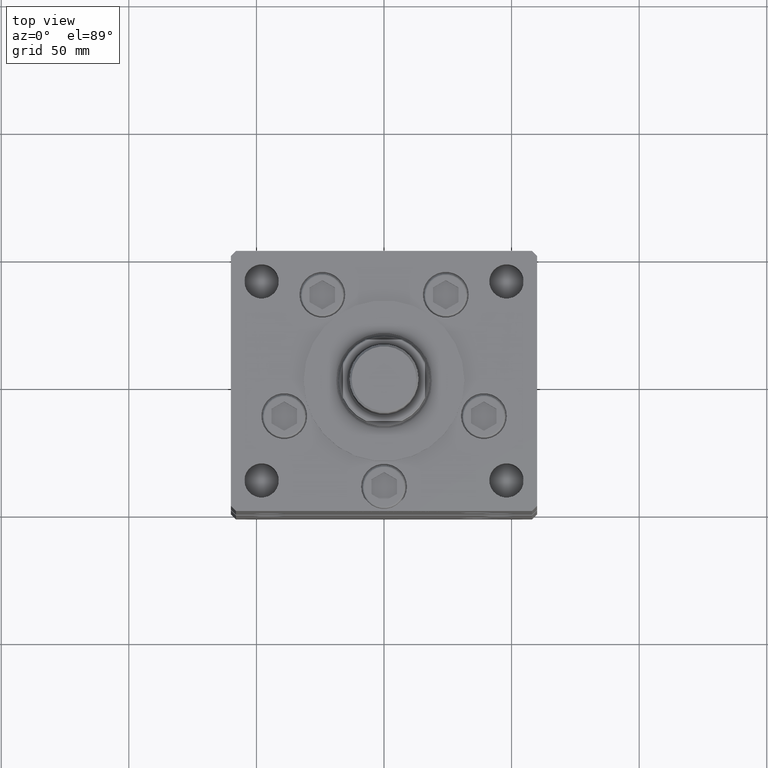
[diagram: clean part render]
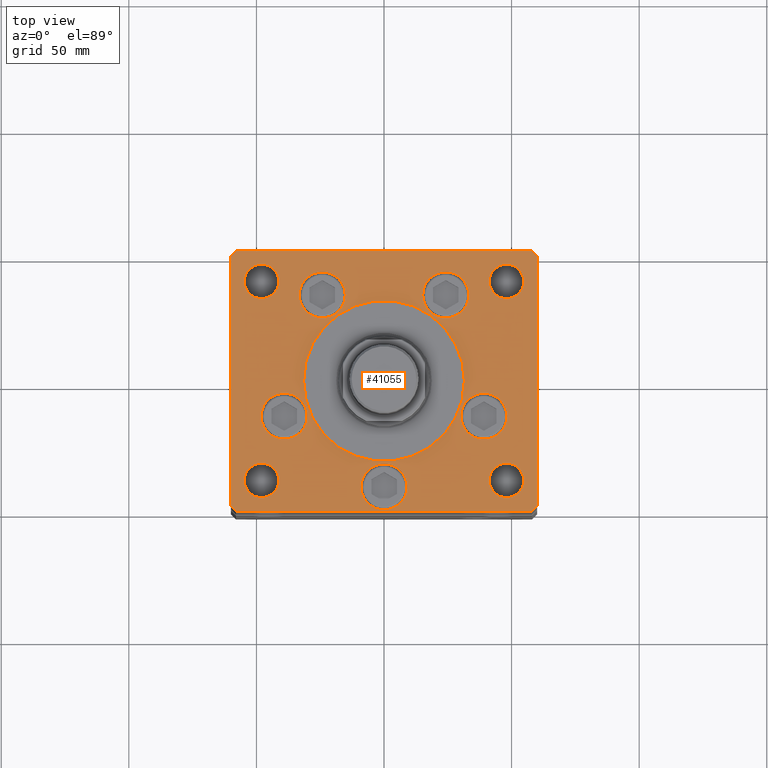
[diagram: same view with one face highlighted and labeled with its STEP entity id]
A machine part, top view. The second image highlights one B-rep face of the part: STEP entity #41055.
In plain terms, the highlighted planar face has unit normal (0, 0, 1).
Its self-contained STEP definition (entity closure, byte-faithful):
#312 = EDGE_CURVE ( 'NONE', #7458, #529, #42595, .T. ) ;
#334 = CARTESIAN_POINT ( 'NONE',  ( -54.75000000000000000, -39.00000000000001421, 0.000000000000000000 ) ) ;
#434 = ORIENTED_EDGE ( 'NONE', *, *, #17738, .T. ) ;
#529 = VERTEX_POINT ( 'NONE', #46582 ) ;
#532 = ORIENTED_EDGE ( 'NONE', *, *, #29534, .T. ) ;
#643 = AXIS2_PLACEMENT_3D ( 'NONE', #2245, #17955, #50676 ) ;
#657 = FACE_BOUND ( 'NONE', #44994, .T. ) ;
#1491 = CARTESIAN_POINT ( 'NONE',  ( -58.00000000000000711, -51.00000000000002842, 0.000000000000000000 ) ) ;
#1558 = CIRCLE ( 'NONE', #39548, 31.50000000000000000 ) ;
#1864 = EDGE_LOOP ( 'NONE', ( #532, #40342 ) ) ;
#2245 = CARTESIAN_POINT ( 'NONE',  ( 0.000000000000000000, -6.938893903907228378E-15, 0.000000000000000000 ) ) ;
#2404 = AXIS2_PLACEMENT_3D ( 'NONE', #36083, #23640, #7943 ) ;
#2600 = AXIS2_PLACEMENT_3D ( 'NONE', #12640, #4527, #33467 ) ;
#2667 = CARTESIAN_POINT ( 'NONE',  ( 33.19288941894913592, 33.71874999999998579, 0.000000000000000000 ) ) ;
#2835 = EDGE_CURVE ( 'NONE', #3861, #12935, #34354, .T. ) ;
#3081 = EDGE_LOOP ( 'NONE', ( #26817, #19081 ) ) ;
#3128 = EDGE_LOOP ( 'NONE', ( #32664, #45875, #11576, #35573, #434, #25481, #46478, #14109 ) ) ;
#3267 = CARTESIAN_POINT ( 'NONE',  ( -57.99999999999998579, 50.99999999999997868, 0.000000000000000000 ) ) ;
#3288 = CARTESIAN_POINT ( 'NONE',  ( -41.25000000000000000, -39.00000000000001421, 0.000000000000000000 ) ) ;
#3861 = VERTEX_POINT ( 'NONE', #20211 ) ;
#4034 = EDGE_CURVE ( 'NONE', #27569, #45777, #17969, .T. ) ;
#4355 = EDGE_CURVE ( 'NONE', #529, #41035, #52205, .T. ) ;
#4442 = CARTESIAN_POINT ( 'NONE',  ( 24.19288941894913592, 33.71874999999998579, 0.000000000000000000 ) ) ;
#4451 = VECTOR ( 'NONE', #27131, 1000.000000000000000 ) ;
#4527 = DIRECTION ( 'NONE',  ( 0.000000000000000000, 0.000000000000000000, 1.000000000000000000 ) ) ;
#4741 = VERTEX_POINT ( 'NONE', #26412 ) ;
#4932 = CIRCLE ( 'NONE', #46370, 6.749999999999999112 ) ;
#5095 = CARTESIAN_POINT ( 'NONE',  ( -48.00000000000000000, 39.00000000000000711, 0.000000000000000000 ) ) ;
#5264 = ORIENTED_EDGE ( 'NONE', *, *, #22795, .F. ) ;
#6170 = VERTEX_POINT ( 'NONE', #35754 ) ;
#6283 = DIRECTION ( 'NONE',  ( 0.000000000000000000, 0.000000000000000000, 1.000000000000000000 ) ) ;
#6420 = DIRECTION ( 'NONE',  ( 1.000000000000000000, 0.000000000000000000, 0.000000000000000000 ) ) ;
#6649 = CARTESIAN_POINT ( 'NONE',  ( -41.25000000000000000, 39.00000000000000711, 0.000000000000000000 ) ) ;
#6729 = VECTOR ( 'NONE', #27454, 1000.000000000000114 ) ;
#7458 = VERTEX_POINT ( 'NONE', #53041 ) ;
#7532 = VECTOR ( 'NONE', #9352, 1000.000000000000000 ) ;
#7727 = EDGE_CURVE ( 'NONE', #38421, #26371, #1558, .T. ) ;
#7804 = CARTESIAN_POINT ( 'NONE',  ( 48.00000000000000000, 39.00000000000000000, 0.000000000000000000 ) ) ;
#7823 = CARTESIAN_POINT ( 'NONE',  ( 31.50000000000000000, -3.081256486593065689E-15, 0.000000000000000000 ) ) ;
#7853 = DIRECTION ( 'NONE',  ( 1.000000000000000000, 0.000000000000000000, 0.000000000000000000 ) ) ;
#7943 = DIRECTION ( 'NONE',  ( 1.000000000000000000, 0.000000000000000000, 0.000000000000000000 ) ) ;
#8032 = DIRECTION ( 'NONE',  ( 0.000000000000000000, -1.000000000000000000, 0.000000000000000000 ) ) ;
#8036 = EDGE_CURVE ( 'NONE', #6170, #16118, #22839, .T. ) ;
#8624 = CARTESIAN_POINT ( 'NONE',  ( 0.000000000000000000, -41.50000000000000000, 0.000000000000000000 ) ) ;
#8684 = EDGE_CURVE ( 'NONE', #41035, #6170, #41281, .T. ) ;
#8710 = CIRCLE ( 'NONE', #27738, 6.749999999999999112 ) ;
#8781 = FACE_BOUND ( 'NONE', #1864, .T. ) ;
#8830 = CARTESIAN_POINT ( 'NONE',  ( -60.00000000000000000, 49.00000000000000000, 0.000000000000000000 ) ) ;
#9096 = DIRECTION ( 'NONE',  ( 0.000000000000000000, 0.000000000000000000, 1.000000000000000000 ) ) ;
#9352 = DIRECTION ( 'NONE',  ( 1.000000000000000000, 9.570888143320313916E-16, 0.000000000000000000 ) ) ;
#9605 = DIRECTION ( 'NONE',  ( -1.000000000000000000, -2.392722035830078972E-16, 0.000000000000000000 ) ) ;
#9607 = EDGE_CURVE ( 'NONE', #45053, #28785, #27524, .T. ) ;
#9761 = ORIENTED_EDGE ( 'NONE', *, *, #36242, .F. ) ;
#9957 = DIRECTION ( 'NONE',  ( 1.000000000000000000, 0.000000000000000000, 0.000000000000000000 ) ) ;
#10524 = ORIENTED_EDGE ( 'NONE', *, *, #41227, .F. ) ;
#11386 = VERTEX_POINT ( 'NONE', #34850 ) ;
#11576 = ORIENTED_EDGE ( 'NONE', *, *, #41305, .T. ) ;
#11580 = DIRECTION ( 'NONE',  ( -0.000000000000000000, 0.000000000000000000, 1.000000000000000000 ) ) ;
#11738 = CARTESIAN_POINT ( 'NONE',  ( -58.00000000000000711, -51.00000000000002842, 0.000000000000000000 ) ) ;
#12078 = CARTESIAN_POINT ( 'NONE',  ( 0.000000000000000000, -41.50000000000000000, 0.000000000000000000 ) ) ;
#12180 = AXIS2_PLACEMENT_3D ( 'NONE', #34823, #43721, #30758 ) ;
#12627 = AXIS2_PLACEMENT_3D ( 'NONE', #7804, #16189, #23765 ) ;
#12640 = CARTESIAN_POINT ( 'NONE',  ( -48.00000000000000000, -39.00000000000001421, 0.000000000000000000 ) ) ;
#12935 = VERTEX_POINT ( 'NONE', #19982 ) ;
#13171 = EDGE_CURVE ( 'NONE', #19509, #19909, #19875, .T. ) ;
#13431 = CARTESIAN_POINT ( 'NONE',  ( 60.00000000000001421, -48.99999999999992895, 0.000000000000000000 ) ) ;
#14004 = DIRECTION ( 'NONE',  ( 1.000000000000000000, 0.000000000000000000, 0.000000000000000000 ) ) ;
#14010 = DIRECTION ( 'NONE',  ( 0.000000000000000000, 0.000000000000000000, 1.000000000000000000 ) ) ;
#14067 = DIRECTION ( 'NONE',  ( 1.000000000000000000, 0.000000000000000000, 0.000000000000000000 ) ) ;
#14109 = ORIENTED_EDGE ( 'NONE', *, *, #8684, .T. ) ;
#14179 = CARTESIAN_POINT ( 'NONE',  ( 58.00000000000001421, -50.99999999999992184, 0.000000000000000000 ) ) ;
#14437 = ORIENTED_EDGE ( 'NONE', *, *, #34541, .F. ) ;
#14463 = CARTESIAN_POINT ( 'NONE',  ( -60.00000000000000000, -49.00000000000004263, 0.000000000000000000 ) ) ;
#14755 = EDGE_CURVE ( 'NONE', #25590, #14868, #25933, .T. ) ;
#14868 = VERTEX_POINT ( 'NONE', #334 ) ;
#14966 = CIRCLE ( 'NONE', #25305, 9.000000000000001776 ) ;
#15157 = EDGE_LOOP ( 'NONE', ( #23497, #37523 ) ) ;
#15446 = CARTESIAN_POINT ( 'NONE',  ( -24.19288941894913592, 33.71874999999998579, 0.000000000000000000 ) ) ;
#15663 = CIRCLE ( 'NONE', #12180, 6.749999999999999112 ) ;
#16050 = DIRECTION ( 'NONE',  ( 0.7071067811865474617, 0.7071067811865474617, 0.000000000000000000 ) ) ;
#16118 = VERTEX_POINT ( 'NONE', #11738 ) ;
#16189 = DIRECTION ( 'NONE',  ( 0.000000000000000000, 0.000000000000000000, 1.000000000000000000 ) ) ;
#16639 = EDGE_CURVE ( 'NONE', #26680, #28226, #15663, .T. ) ;
#17013 = ORIENTED_EDGE ( 'NONE', *, *, #42885, .T. ) ;
#17049 = DIRECTION ( 'NONE',  ( 1.000000000000000000, 0.000000000000000000, 0.000000000000000000 ) ) ;
#17433 = DIRECTION ( 'NONE',  ( 1.000000000000000000, 0.000000000000000000, 0.000000000000000000 ) ) ;
#17732 = LINE ( 'NONE', #1491, #7532 ) ;
#17738 = EDGE_CURVE ( 'NONE', #4741, #7458, #23056, .T. ) ;
#17955 = DIRECTION ( 'NONE',  ( 0.000000000000000000, 0.000000000000000000, 1.000000000000000000 ) ) ;
#17969 = CIRCLE ( 'NONE', #2404, 9.000000000000000000 ) ;
#18017 = VERTEX_POINT ( 'NONE', #27067 ) ;
#18058 = CARTESIAN_POINT ( 'NONE',  ( 0.000000000000000000, -6.938893903907228378E-15, 0.000000000000000000 ) ) ;
#18219 = ORIENTED_EDGE ( 'NONE', *, *, #16639, .T. ) ;
#18387 = CARTESIAN_POINT ( 'NONE',  ( -48.00000000000000000, -39.00000000000001421, 0.000000000000000000 ) ) ;
#18499 = EDGE_LOOP ( 'NONE', ( #45497, #34983 ) ) ;
#19081 = ORIENTED_EDGE ( 'NONE', *, *, #4034, .F. ) ;
#19099 = CARTESIAN_POINT ( 'NONE',  ( 54.75000000000000000, -39.00000000000001421, 0.000000000000000000 ) ) ;
#19122 = DIRECTION ( 'NONE',  ( 0.000000000000000000, 0.000000000000000000, 1.000000000000000000 ) ) ;
#19365 = DIRECTION ( 'NONE',  ( -0.000000000000000000, -0.000000000000000000, -1.000000000000000000 ) ) ;
#19509 = VERTEX_POINT ( 'NONE', #28236 ) ;
#19875 = CIRCLE ( 'NONE', #28503, 9.000000000000001776 ) ;
#19909 = VERTEX_POINT ( 'NONE', #2667 ) ;
#19982 = CARTESIAN_POINT ( 'NONE',  ( -30.12657522565563539, -13.83333333333332860, 0.000000000000000000 ) ) ;
#20056 = CIRCLE ( 'NONE', #50267, 9.000000000000001776 ) ;
#20060 = CARTESIAN_POINT ( 'NONE',  ( 39.12657522565563539, -13.83333333333332860, 0.000000000000000000 ) ) ;
#20211 = CARTESIAN_POINT ( 'NONE',  ( -48.12657522565563539, -13.83333333333332682, 0.000000000000000000 ) ) ;
#20349 = CARTESIAN_POINT ( 'NONE',  ( -33.19288941894913592, 33.71874999999998579, 0.000000000000000000 ) ) ;
#20521 = CARTESIAN_POINT ( 'NONE',  ( 9.000000000000000000, -41.50000000000000000, 0.000000000000000000 ) ) ;
#20674 = DIRECTION ( 'NONE',  ( 0.000000000000000000, 0.000000000000000000, 1.000000000000000000 ) ) ;
#21212 = FACE_BOUND ( 'NONE', #27027, .T. ) ;
#21706 = EDGE_CURVE ( 'NONE', #12935, #3861, #14966, .T. ) ;
#22102 = DIRECTION ( 'NONE',  ( -0.000000000000000000, -0.000000000000000000, -1.000000000000000000 ) ) ;
#22109 = CARTESIAN_POINT ( 'NONE',  ( -9.000000000000000000, -41.50000000000000000, 0.000000000000000000 ) ) ;
#22301 = EDGE_CURVE ( 'NONE', #28785, #45053, #33106, .T. ) ;
#22773 = DIRECTION ( 'NONE',  ( 1.000000000000000000, 0.000000000000000000, 0.000000000000000000 ) ) ;
#22795 = EDGE_CURVE ( 'NONE', #19909, #19509, #20056, .T. ) ;
#22839 = LINE ( 'NONE', #14463, #6729 ) ;
#23056 = LINE ( 'NONE', #43887, #4451 ) ;
#23497 = ORIENTED_EDGE ( 'NONE', *, *, #21706, .F. ) ;
#23550 = EDGE_LOOP ( 'NONE', ( #17013, #18219 ) ) ;
#23640 = DIRECTION ( 'NONE',  ( 0.000000000000000000, 0.000000000000000000, 1.000000000000000000 ) ) ;
#23765 = DIRECTION ( 'NONE',  ( 1.000000000000000000, 0.000000000000000000, 0.000000000000000000 ) ) ;
#24769 = DIRECTION ( 'NONE',  ( 1.000000000000000000, 0.000000000000000000, 0.000000000000000000 ) ) ;
#25124 = VERTEX_POINT ( 'NONE', #14179 ) ;
#25305 = AXIS2_PLACEMENT_3D ( 'NONE', #50989, #9096, #33441 ) ;
#25481 = ORIENTED_EDGE ( 'NONE', *, *, #312, .T. ) ;
#25590 = VERTEX_POINT ( 'NONE', #3288 ) ;
#25933 = CIRCLE ( 'NONE', #2600, 6.749999999999999112 ) ;
#26371 = VERTEX_POINT ( 'NONE', #29873 ) ;
#26406 = EDGE_LOOP ( 'NONE', ( #10524, #41919 ) ) ;
#26412 = CARTESIAN_POINT ( 'NONE',  ( 60.00000000000001421, 49.00000000000002842, 0.000000000000000000 ) ) ;
#26426 = DIRECTION ( 'NONE',  ( 0.000000000000000000, 0.000000000000000000, 1.000000000000000000 ) ) ;
#26671 = AXIS2_PLACEMENT_3D ( 'NONE', #28099, #11580, #17433 ) ;
#26680 = VERTEX_POINT ( 'NONE', #46022 ) ;
#26738 = FACE_BOUND ( 'NONE', #46822, .T. ) ;
#26817 = ORIENTED_EDGE ( 'NONE', *, *, #27824, .F. ) ;
#27027 = EDGE_LOOP ( 'NONE', ( #32081, #48834 ) ) ;
#27067 = CARTESIAN_POINT ( 'NONE',  ( 48.12657522565563539, -13.83333333333332860, 0.000000000000000000 ) ) ;
#27102 = ORIENTED_EDGE ( 'NONE', *, *, #31407, .F. ) ;
#27131 = DIRECTION ( 'NONE',  ( -0.7071067811865536790, 0.7071067811865414665, 0.000000000000000000 ) ) ;
#27418 = CARTESIAN_POINT ( 'NONE',  ( 58.00000000000001421, -50.99999999999992184, 0.000000000000000000 ) ) ;
#27454 = DIRECTION ( 'NONE',  ( 0.7071067811865474617, -0.7071067811865474617, 0.000000000000000000 ) ) ;
#27524 = CIRCLE ( 'NONE', #49081, 9.000000000000000000 ) ;
#27551 = CARTESIAN_POINT ( 'NONE',  ( -60.00000000000000000, 49.00000000000000000, 0.000000000000000000 ) ) ;
#27569 = VERTEX_POINT ( 'NONE', #20349 ) ;
#27738 = AXIS2_PLACEMENT_3D ( 'NONE', #18387, #33833, #14067 ) ;
#27824 = EDGE_CURVE ( 'NONE', #45777, #27569, #28835, .T. ) ;
#28028 = CIRCLE ( 'NONE', #32343, 6.749999999999999112 ) ;
#28099 = CARTESIAN_POINT ( 'NONE',  ( 0.000000000000000000, 0.000000000000000000, 0.000000000000000000 ) ) ;
#28137 = DIRECTION ( 'NONE',  ( 0.000000000000000000, 0.000000000000000000, 1.000000000000000000 ) ) ;
#28226 = VERTEX_POINT ( 'NONE', #19099 ) ;
#28236 = CARTESIAN_POINT ( 'NONE',  ( 15.19288941894913236, 33.71874999999998579, 0.000000000000000000 ) ) ;
#28237 = VECTOR ( 'NONE', #9605, 1000.000000000000000 ) ;
#28299 = VERTEX_POINT ( 'NONE', #6649 ) ;
#28399 = EDGE_CURVE ( 'NONE', #11386, #28299, #41784, .T. ) ;
#28503 = AXIS2_PLACEMENT_3D ( 'NONE', #50763, #26426, #47231 ) ;
#28785 = VERTEX_POINT ( 'NONE', #22109 ) ;
#28835 = CIRCLE ( 'NONE', #46949, 9.000000000000000000 ) ;
#29159 = CIRCLE ( 'NONE', #46443, 9.000000000000001776 ) ;
#29534 = EDGE_CURVE ( 'NONE', #28299, #11386, #28028, .T. ) ;
#29574 = EDGE_LOOP ( 'NONE', ( #51360, #27102 ) ) ;
#29873 = CARTESIAN_POINT ( 'NONE',  ( -31.50000000000000000, -6.938893903907228378E-15, 0.000000000000000000 ) ) ;
#29884 = VERTEX_POINT ( 'NONE', #51503 ) ;
#30256 = DIRECTION ( 'NONE',  ( -1.000000000000000000, 0.000000000000000000, 0.000000000000000000 ) ) ;
#30758 = DIRECTION ( 'NONE',  ( -1.000000000000000000, 0.000000000000000000, 0.000000000000000000 ) ) ;
#31382 = DIRECTION ( 'NONE',  ( 1.000000000000000000, 0.000000000000000000, 0.000000000000000000 ) ) ;
#31407 = EDGE_CURVE ( 'NONE', #47344, #18017, #34113, .T. ) ;
#31541 = CARTESIAN_POINT ( 'NONE',  ( -48.00000000000000000, 39.00000000000000711, 0.000000000000000000 ) ) ;
#32037 = EDGE_CURVE ( 'NONE', #16118, #25124, #17732, .T. ) ;
#32081 = ORIENTED_EDGE ( 'NONE', *, *, #9607, .F. ) ;
#32144 = FACE_BOUND ( 'NONE', #26406, .T. ) ;
#32343 = AXIS2_PLACEMENT_3D ( 'NONE', #5095, #33776, #30256 ) ;
#32531 = CARTESIAN_POINT ( 'NONE',  ( -15.19288941894913592, 33.71874999999998579, 0.000000000000000000 ) ) ;
#32664 = ORIENTED_EDGE ( 'NONE', *, *, #8036, .T. ) ;
#33106 = CIRCLE ( 'NONE', #35576, 9.000000000000000000 ) ;
#33135 = PLANE ( 'NONE',  #26671 ) ;
#33441 = DIRECTION ( 'NONE',  ( 1.000000000000000000, 0.000000000000000000, 0.000000000000000000 ) ) ;
#33467 = DIRECTION ( 'NONE',  ( 1.000000000000000000, 0.000000000000000000, 0.000000000000000000 ) ) ;
#33776 = DIRECTION ( 'NONE',  ( -0.000000000000000000, -0.000000000000000000, -1.000000000000000000 ) ) ;
#33833 = DIRECTION ( 'NONE',  ( 0.000000000000000000, 0.000000000000000000, 1.000000000000000000 ) ) ;
#33949 = FACE_BOUND ( 'NONE', #23550, .T. ) ;
#34113 = CIRCLE ( 'NONE', #50497, 9.000000000000001776 ) ;
#34143 = ORIENTED_EDGE ( 'NONE', *, *, #13171, .F. ) ;
#34254 = LINE ( 'NONE', #13431, #44828 ) ;
#34354 = CIRCLE ( 'NONE', #46428, 9.000000000000001776 ) ;
#34541 = EDGE_CURVE ( 'NONE', #40239, #29884, #47164, .T. ) ;
#34823 = CARTESIAN_POINT ( 'NONE',  ( 48.00000000000000000, -39.00000000000001421, 0.000000000000000000 ) ) ;
#34850 = CARTESIAN_POINT ( 'NONE',  ( -54.75000000000000000, 39.00000000000000711, 0.000000000000000000 ) ) ;
#34983 = ORIENTED_EDGE ( 'NONE', *, *, #51849, .F. ) ;
#35573 = ORIENTED_EDGE ( 'NONE', *, *, #45381, .T. ) ;
#35576 = AXIS2_PLACEMENT_3D ( 'NONE', #8624, #51063, #9957 ) ;
#35754 = CARTESIAN_POINT ( 'NONE',  ( -60.00000000000000000, -49.00000000000004263, 0.000000000000000000 ) ) ;
#36083 = CARTESIAN_POINT ( 'NONE',  ( -24.19288941894913592, 33.71874999999998579, 0.000000000000000000 ) ) ;
#36242 = EDGE_CURVE ( 'NONE', #29884, #40239, #4932, .T. ) ;
#36536 = DIRECTION ( 'NONE',  ( -0.7071067811865536790, -0.7071067811865414665, 0.000000000000000000 ) ) ;
#36915 = CARTESIAN_POINT ( 'NONE',  ( 41.25000000000000000, 39.00000000000000000, 0.000000000000000000 ) ) ;
#37024 = CIRCLE ( 'NONE', #643, 31.50000000000000000 ) ;
#37523 = ORIENTED_EDGE ( 'NONE', *, *, #2835, .F. ) ;
#38255 = FACE_OUTER_BOUND ( 'NONE', #3128, .T. ) ;
#38257 = EDGE_CURVE ( 'NONE', #18017, #47344, #29159, .T. ) ;
#38310 = AXIS2_PLACEMENT_3D ( 'NONE', #31541, #19365, #48563 ) ;
#38421 = VERTEX_POINT ( 'NONE', #7823 ) ;
#38595 = DIRECTION ( 'NONE',  ( -1.000000000000000000, 0.000000000000000000, 0.000000000000000000 ) ) ;
#38609 = DIRECTION ( 'NONE',  ( 0.000000000000000000, 0.000000000000000000, 1.000000000000000000 ) ) ;
#38669 = CIRCLE ( 'NONE', #47315, 6.749999999999999112 ) ;
#39411 = CARTESIAN_POINT ( 'NONE',  ( -39.12657522565563539, -13.83333333333332860, 0.000000000000000000 ) ) ;
#39548 = AXIS2_PLACEMENT_3D ( 'NONE', #18058, #38609, #14004 ) ;
#40239 = VERTEX_POINT ( 'NONE', #36915 ) ;
#40342 = ORIENTED_EDGE ( 'NONE', *, *, #28399, .T. ) ;
#41035 = VERTEX_POINT ( 'NONE', #27551 ) ;
#41055 = ADVANCED_FACE ( 'NONE', ( #32144, #48622, #26738, #43226, #21212, #49865, #8781, #657, #42315, #38255, #33949 ), #33135, .T. ) ;
#41227 = EDGE_CURVE ( 'NONE', #26371, #38421, #37024, .T. ) ;
#41281 = LINE ( 'NONE', #8830, #44737 ) ;
#41305 = EDGE_CURVE ( 'NONE', #25124, #50141, #48492, .T. ) ;
#41784 = CIRCLE ( 'NONE', #38310, 6.749999999999999112 ) ;
#41919 = ORIENTED_EDGE ( 'NONE', *, *, #7727, .F. ) ;
#42315 = FACE_BOUND ( 'NONE', #18499, .T. ) ;
#42595 = LINE ( 'NONE', #46650, #28237 ) ;
#42885 = EDGE_CURVE ( 'NONE', #28226, #26680, #38669, .T. ) ;
#43202 = CARTESIAN_POINT ( 'NONE',  ( 30.12657522565563539, -13.83333333333332682, 0.000000000000000000 ) ) ;
#43226 = FACE_BOUND ( 'NONE', #29574, .T. ) ;
#43335 = CARTESIAN_POINT ( 'NONE',  ( 48.00000000000000000, 39.00000000000000000, 0.000000000000000000 ) ) ;
#43721 = DIRECTION ( 'NONE',  ( -0.000000000000000000, -0.000000000000000000, -1.000000000000000000 ) ) ;
#43798 = CARTESIAN_POINT ( 'NONE',  ( 39.12657522565563539, -13.83333333333332860, 0.000000000000000000 ) ) ;
#43887 = CARTESIAN_POINT ( 'NONE',  ( 60.00000000000001421, 49.00000000000002842, 0.000000000000000000 ) ) ;
#44737 = VECTOR ( 'NONE', #8032, 1000.000000000000000 ) ;
#44828 = VECTOR ( 'NONE', #50991, 1000.000000000000000 ) ;
#44994 = EDGE_LOOP ( 'NONE', ( #9761, #14437 ) ) ;
#45053 = VERTEX_POINT ( 'NONE', #20521 ) ;
#45381 = EDGE_CURVE ( 'NONE', #50141, #4741, #34254, .T. ) ;
#45497 = ORIENTED_EDGE ( 'NONE', *, *, #14755, .F. ) ;
#45546 = DIRECTION ( 'NONE',  ( 1.000000000000000000, 0.000000000000000000, 0.000000000000000000 ) ) ;
#45668 = VECTOR ( 'NONE', #16050, 1000.000000000000114 ) ;
#45777 = VERTEX_POINT ( 'NONE', #32531 ) ;
#45875 = ORIENTED_EDGE ( 'NONE', *, *, #32037, .T. ) ;
#46022 = CARTESIAN_POINT ( 'NONE',  ( 41.25000000000000000, -39.00000000000001421, 0.000000000000000000 ) ) ;
#46370 = AXIS2_PLACEMENT_3D ( 'NONE', #43335, #6283, #22773 ) ;
#46428 = AXIS2_PLACEMENT_3D ( 'NONE', #39411, #14010, #6420 ) ;
#46443 = AXIS2_PLACEMENT_3D ( 'NONE', #43798, #28137, #31382 ) ;
#46478 = ORIENTED_EDGE ( 'NONE', *, *, #4355, .T. ) ;
#46582 = CARTESIAN_POINT ( 'NONE',  ( -57.99999999999998579, 50.99999999999997868, 0.000000000000000000 ) ) ;
#46650 = CARTESIAN_POINT ( 'NONE',  ( 58.00000000000000000, 51.00000000000000711, 0.000000000000000000 ) ) ;
#46822 = EDGE_LOOP ( 'NONE', ( #5264, #34143 ) ) ;
#46949 = AXIS2_PLACEMENT_3D ( 'NONE', #15446, #49209, #7853 ) ;
#46978 = CARTESIAN_POINT ( 'NONE',  ( 48.00000000000000000, -39.00000000000001421, 0.000000000000000000 ) ) ;
#47164 = CIRCLE ( 'NONE', #12627, 6.749999999999999112 ) ;
#47231 = DIRECTION ( 'NONE',  ( 1.000000000000000000, 0.000000000000000000, 0.000000000000000000 ) ) ;
#47315 = AXIS2_PLACEMENT_3D ( 'NONE', #46978, #22102, #38595 ) ;
#47344 = VERTEX_POINT ( 'NONE', #43202 ) ;
#48492 = LINE ( 'NONE', #27418, #45668 ) ;
#48563 = DIRECTION ( 'NONE',  ( -1.000000000000000000, 0.000000000000000000, 0.000000000000000000 ) ) ;
#48622 = FACE_BOUND ( 'NONE', #3081, .T. ) ;
#48834 = ORIENTED_EDGE ( 'NONE', *, *, #22301, .F. ) ;
#49081 = AXIS2_PLACEMENT_3D ( 'NONE', #12078, #19122, #24769 ) ;
#49209 = DIRECTION ( 'NONE',  ( 0.000000000000000000, 0.000000000000000000, 1.000000000000000000 ) ) ;
#49865 = FACE_BOUND ( 'NONE', #15157, .T. ) ;
#50141 = VERTEX_POINT ( 'NONE', #53279 ) ;
#50267 = AXIS2_PLACEMENT_3D ( 'NONE', #4442, #20674, #45546 ) ;
#50497 = AXIS2_PLACEMENT_3D ( 'NONE', #20060, #53039, #17049 ) ;
#50676 = DIRECTION ( 'NONE',  ( 1.000000000000000000, 0.000000000000000000, 0.000000000000000000 ) ) ;
#50763 = CARTESIAN_POINT ( 'NONE',  ( 24.19288941894913592, 33.71874999999998579, 0.000000000000000000 ) ) ;
#50989 = CARTESIAN_POINT ( 'NONE',  ( -39.12657522565563539, -13.83333333333332860, 0.000000000000000000 ) ) ;
#50991 = DIRECTION ( 'NONE',  ( 0.000000000000000000, 1.000000000000000000, 0.000000000000000000 ) ) ;
#51063 = DIRECTION ( 'NONE',  ( 0.000000000000000000, 0.000000000000000000, 1.000000000000000000 ) ) ;
#51360 = ORIENTED_EDGE ( 'NONE', *, *, #38257, .F. ) ;
#51503 = CARTESIAN_POINT ( 'NONE',  ( 54.75000000000000000, 39.00000000000000000, 0.000000000000000000 ) ) ;
#51849 = EDGE_CURVE ( 'NONE', #14868, #25590, #8710, .T. ) ;
#52205 = LINE ( 'NONE', #3267, #52513 ) ;
#52513 = VECTOR ( 'NONE', #36536, 1000.000000000000000 ) ;
#53039 = DIRECTION ( 'NONE',  ( 0.000000000000000000, 0.000000000000000000, 1.000000000000000000 ) ) ;
#53041 = CARTESIAN_POINT ( 'NONE',  ( 58.00000000000000000, 51.00000000000000711, 0.000000000000000000 ) ) ;
#53279 = CARTESIAN_POINT ( 'NONE',  ( 60.00000000000001421, -48.99999999999992895, 0.000000000000000000 ) ) ;